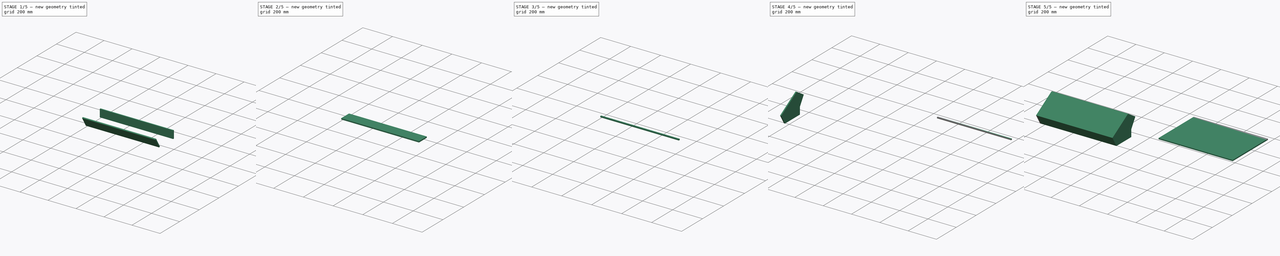
[diagram: build sequence overview — one tinted view per stage of 5, left to right]
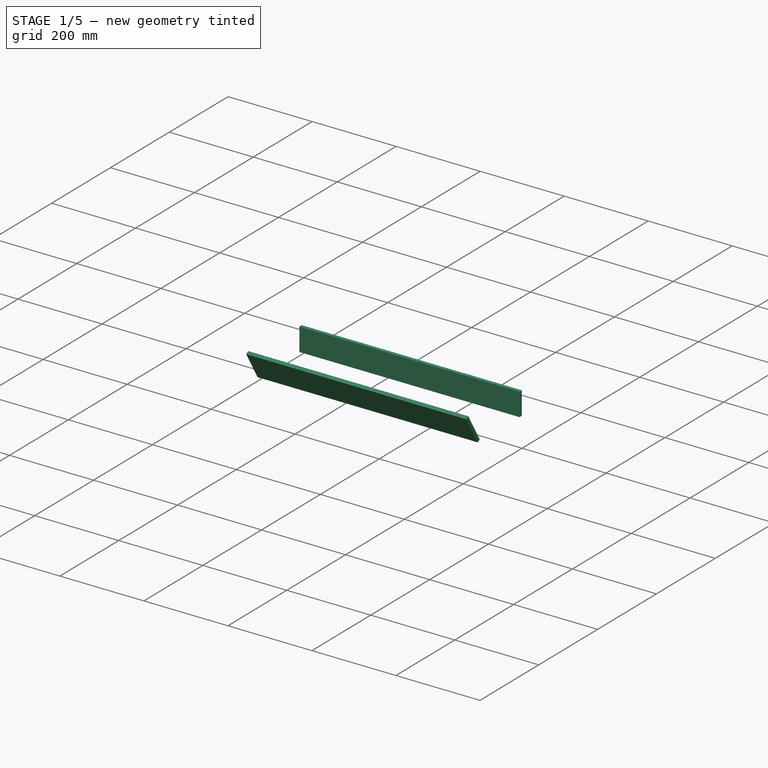
[diagram: stage 1 of 5 — iso view after this stage's code; geometry added in this stage tinted green]
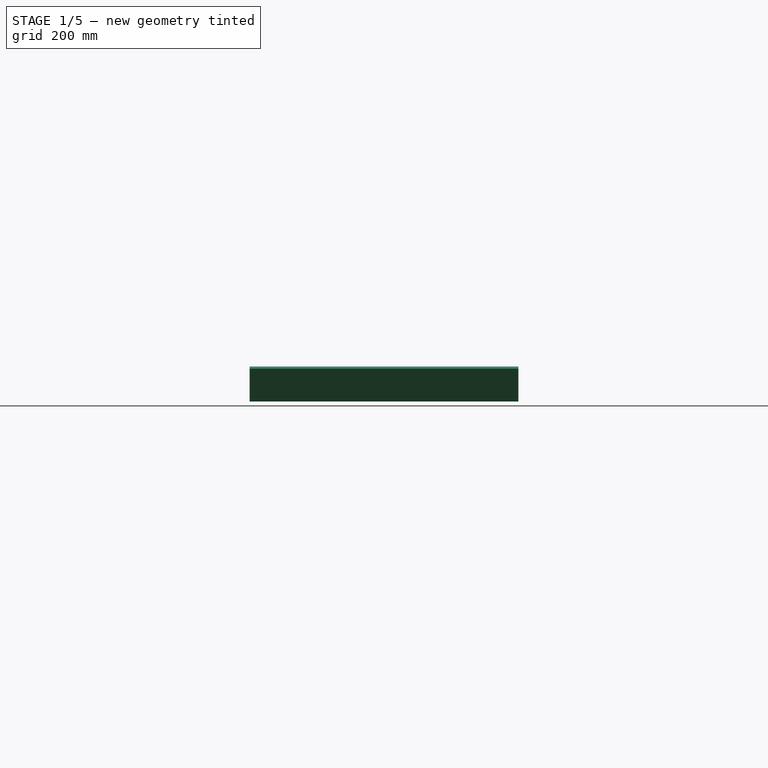
[diagram: stage 1 of 5 — front view after this stage's code; geometry added in this stage tinted green]
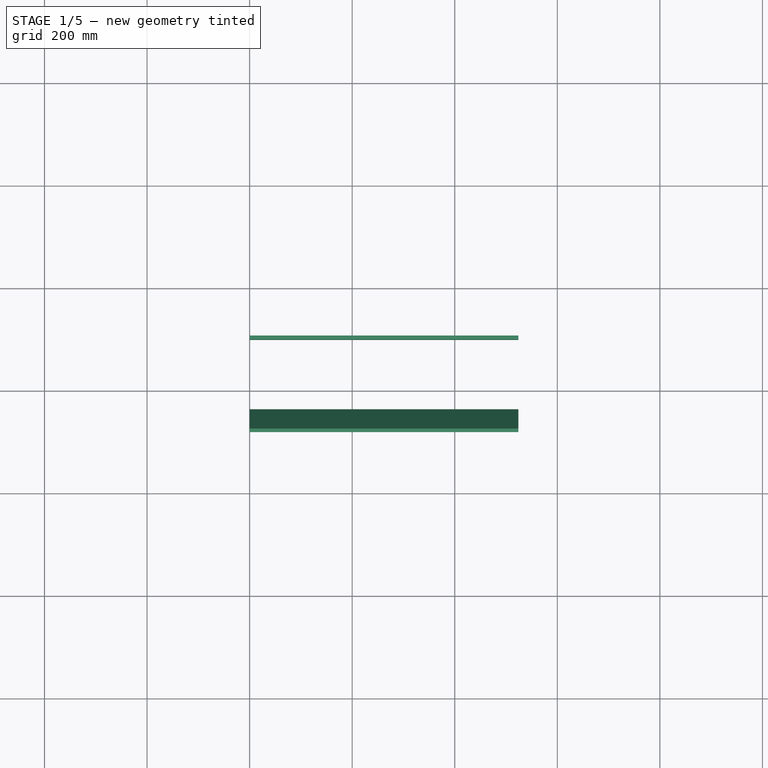
[diagram: stage 1 of 5 — top view after this stage's code; geometry added in this stage tinted green]
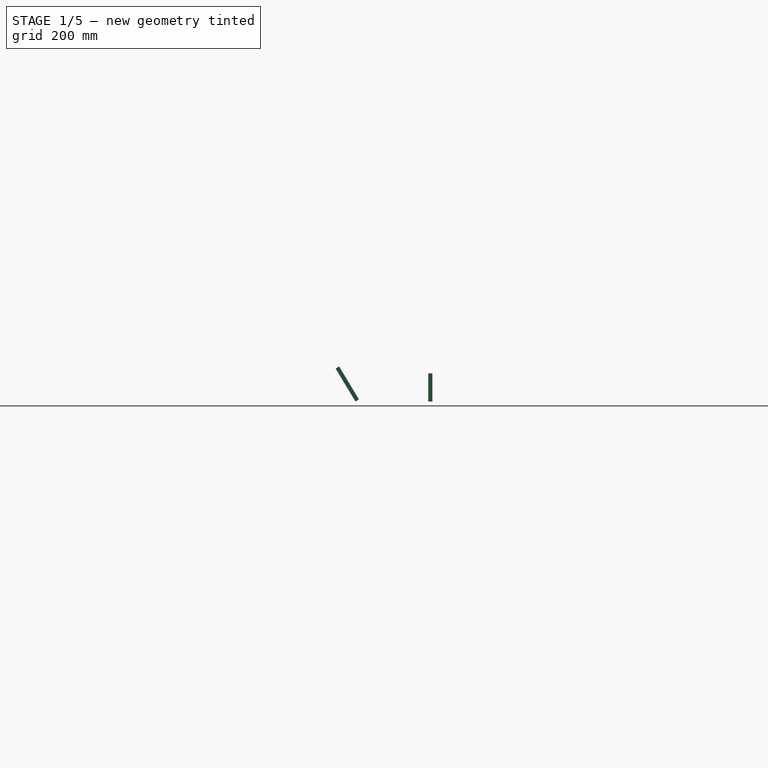
[diagram: stage 1 of 5 — right view after this stage's code; geometry added in this stage tinted green]
FCSTD DOCUMENT  (FreeCAD 0.18R16110 (Git))
Label: kerbal_controller
License: All rights reserved
LicenseURL: http://en.wikipedia.org/wiki/All_rights_reserved
objects: Sketcher::SketchObject×9, Part::Extrusion×9, Part::Box×6, Drawing::FeatureViewPart×4, Part::Compound×2, App::DocumentObjectGroup×2, Spreadsheet::Sheet×1, PartDesign::FeatureBase×1, PartDesign::Body×1, Drawing::FeaturePage×1
note: 28 computed .brp shape members not serialized (recipe doc carries the construction recipe); baked Part::Feature solids carry a one-line shape summary decoded from their .brp

FEATURE [Sketcher::SketchObject] Sketch  label="SideSketch"
  Placement = pos=(0,0,0) rot=(1,0,0;1.5708rad)
  expr: Constraints[10] = dimensions.control_panel_height + dimensions.plexi_witdh / 1.5
  expr: Constraints[11] = dimensions.instrument_panel_height
  sketch-geometry (6):
    g0: LineSegment StartX=-107.769 StartY=-98.6675 StartZ=0 EndX=42.1652 EndY=-98.6675 EndZ=0
    g1: LineSegment StartX=42.1652 StartY=-98.6675 StartZ=0 EndX=80.8526 EndY=-34.4158 EndZ=0
    g2: LineSegment StartX=80.8526 StartY=-34.4158 StartZ=0 EndX=-75.0649 EndY=59.4657 EndZ=0
    g3: LineSegment StartX=-75.0649 StartY=59.4657 StartZ=0 EndX=-147.149 EndY=14.4223 EndZ=0
    g4: LineSegment StartX=-147.149 StartY=14.4223 StartZ=0 EndX=-107.769 EndY=-48.5979 EndZ=0
    g5: LineSegment StartX=-107.769 StartY=-48.5979 StartZ=0 EndX=-107.769 EndY=-98.6675 EndZ=0
  constraints (13):
    c: Coincident(g0,g1)
    c: Coincident(g1,g2)
    c: Coincident(g2,g3)
    c: Coincident(g3,g4)
    c: Coincident(g4,g5)
    c: Coincident(g5,g0)
    c: Horizontal(g0)
    c: Perpendicular(g0,g5)
    c: Perpendicular(g3,g4)
    c: Perpendicular(g1,g2)
    c: Distance(g2) = 182
    c: Distance(g3) = 85
    c: Distance(g1) = 75
FEATURE [Spreadsheet::Sheet] Spreadsheet  label="dimensions"
  cells = A1=total_width; B1(total_witdh)==540mm; A2=instrument_panel_height; B2(instrument_panel_height)==85mm; A3=control_panel_height; B3(control_panel_height)==180mm; A4=mdf_width; B4(mdf_width)==8mm; A5=plexi_witdh; B5(plexi_witdh)==3mm
FEATURE [Part::Extrusion] Extrude  label="LeftPanel"
  Base = -> Sketch
  Dir = (0,-1,2e-16)
  DirMode = 2
  FaceMakerClass = Part::FaceMakerBullseye
  LengthFwd = 8
  LengthRev = 0
  Placement = pos=(0,0,0) rot=(0,0,-1;1.5708rad)
  Solid = true
  Symmetric = false
  expr: LengthFwd = dimensions.mdf_width
FEATURE [Sketcher::SketchObject] Sketch002  label="TopPanelSketch"
  ExternalGeometry = -> [Extrude]
  MapMode = 5
  Placement = pos=(-1.3e-15,100.146,97.5536) rot=(0,0.388733,0.92135;3.14159rad)
  Support = -> [Extrude]
  expr: Constraints[9] = dimensions.total_witdh - 2 * dimensions.mdf_width
  expr: Constraints[8] = dimensions.total_witdh - 2 * dimensions.mdf_width
  sketch-geometry (4):
    g0: LineSegment StartX=-524 StartY=-147.371 StartZ=0 EndX=0 EndY=-147.371 EndZ=0
    g1: LineSegment StartX=0 StartY=-147.371 StartZ=0 EndX=1.33e-14 EndY=-84.367 EndZ=0
    g2: LineSegment StartX=1.33e-14 StartY=-84.367 StartZ=0 EndX=-524 EndY=-84.367 EndZ=0
    g3: LineSegment StartX=-524 StartY=-84.367 StartZ=0 EndX=-524 EndY=-147.371 EndZ=0
  constraints (10):
    c: Coincident(g0,g1)
    c: Coincident(g1,g2)
    c: Coincident(g2,g3)
    c: Coincident(g3,g0)
    c: Coincident(g0,g-3)
    c: Coincident(g1,g-4)
    c: Perpendicular(g1,g0)
    c: Perpendicular(g1,g2)
    c: Distance(g0) = 524
    c: Distance(g2) = 524
FEATURE [Part::Extrusion] Extrude002  label="TopPanel"
  Base = -> Sketch002
  Dir = (0,0.716319,0.697773)
  DirMode = 2
  FaceMakerClass = Part::FaceMakerBullseye
  LengthFwd = -8
  LengthRev = 0
  Solid = true
  Symmetric = false
  expr: LengthFwd = -dimensions.mdf_width
FEATURE [Sketcher::SketchObject] Sketch004  label="FrontPanelSketch"
  ExternalGeometry = -> [Extrude]
  MapMode = 5
  Placement = pos=(1.74e-14,-86.2035,-8.87114) rot=(1,0,0;1.67335rad)
  Support = -> [Extrude]
  expr: Constraints[7] = dimensions.total_witdh - 2 * dimensions.mdf_width
  expr: Constraints[6] = dimensions.total_witdh - 2 * dimensions.mdf_width
  sketch-geometry (4):
    g0: LineSegment StartX=0 StartY=-32.1195 StartZ=0 EndX=-2.31e-14 EndY=-107.119 EndZ=0
    g1: LineSegment StartX=-2.31e-14 StartY=-107.119 StartZ=0 EndX=524 EndY=-107.119 EndZ=0
    g2: LineSegment StartX=524 StartY=-107.119 StartZ=0 EndX=524 EndY=-32.1195 EndZ=0
    g3: LineSegment StartX=524 StartY=-32.1195 StartZ=0 EndX=0 EndY=-32.1195 EndZ=0
  constraints (10):
    c: Coincident(g0,g1)
    c: Coincident(g1,g2)
    c: Coincident(g2,g3)
    c: Coincident(g3,g0)
    c: Perpendicular(g0,g3)
    c: Perpendicular(g0,g1)
    c: Distance(g3) = 524
    c: Distance(g1) = 524
    c: Coincident(g-4,g0)
    c: Coincident(g-3,g0)
FEATURE [Part::Extrusion] Extrude004  label="FrontPanel"
  Base = -> Sketch004
  Dir = (2e-16,-0.994747,-0.102369)
  DirMode = 2
  FaceMakerClass = Part::FaceMakerBullseye
  LengthFwd = -8
  LengthRev = 0
  Solid = true
  Symmetric = false
  expr: LengthFwd = -dimensions.mdf_width
FEATURE [Sketcher::SketchObject] Sketch007  label="BackPanelSketch"
  ExternalGeometry = -> [Extrude,Extrude002]
  MapMode = 5
  Placement = pos=(-4.51e-14,202.978,0) rot=(0,0.707107,0.707107;3.14159rad)
  Support = -> [Extrude]
  expr: Constraints[10] = dimensions.total_witdh - dimensions.mdf_width * 2
  sketch-geometry (4):
    g0: LineSegment StartX=0 StartY=-14.0935 StartZ=0 EndX=-524 EndY=-14.0935 EndZ=0
    g1: LineSegment StartX=-524 StartY=-14.0935 StartZ=0 EndX=-524 EndY=-115.428 EndZ=0
    g2: LineSegment StartX=-524 StartY=-115.428 StartZ=0 EndX=0 EndY=-115.428 EndZ=0
    g3: LineSegment StartX=0 StartY=-115.428 StartZ=0 EndX=0 EndY=-14.0935 EndZ=0
  constraints (11):
    c: Coincident(g0,g1)
    c: Coincident(g1,g2)
    c: Coincident(g2,g3)
    c: Coincident(g3,g0)
    c: Horizontal(g0)
    c: Horizontal(g2)
    c: Vertical(g1)
    c: Vertical(g3)
    c: Coincident(g2,g-3)
    c: Distance(g0,g-4) = 0.5
    c: Distance(g2) = 524
FEATURE [Part::Extrusion] Extrude007  label="BackPanel"
  Base = -> Sketch007
  Dir = (-2e-16,1,-2e-16)
  DirMode = 2
  FaceMakerClass = Part::FaceMakerBullseye
  LengthFwd = -8
  LengthRev = 0
  Solid = true
  Symmetric = false
  expr: LengthFwd = -dimensions.mdf_width
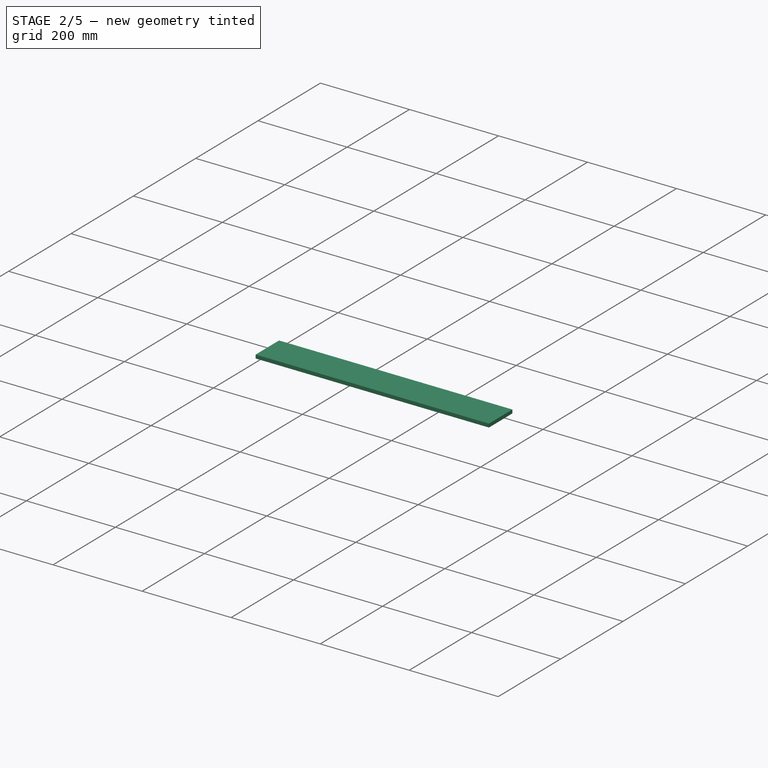
[diagram: stage 2 of 5 — iso view after this stage's code; geometry added in this stage tinted green]
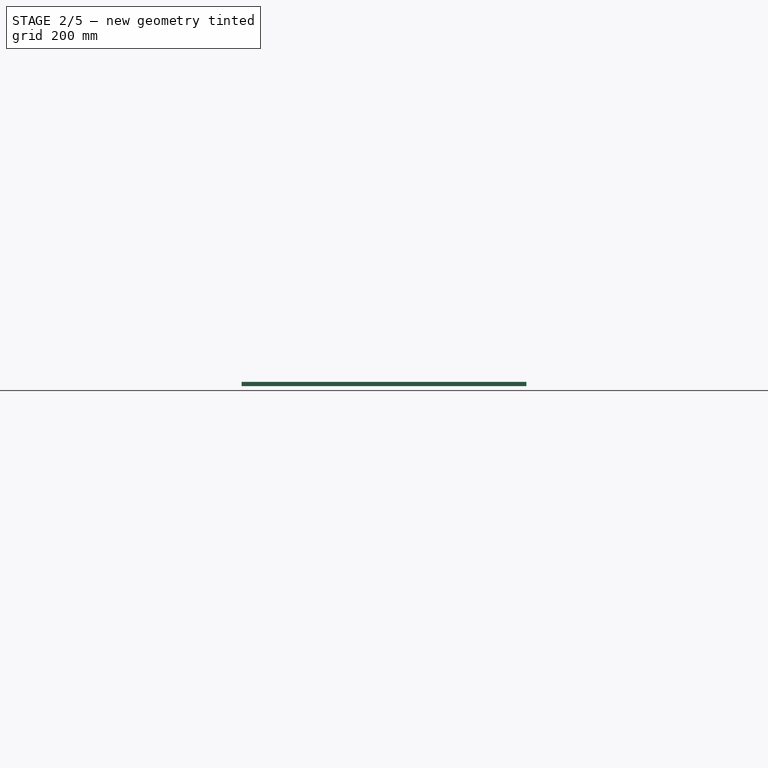
[diagram: stage 2 of 5 — front view after this stage's code; geometry added in this stage tinted green]
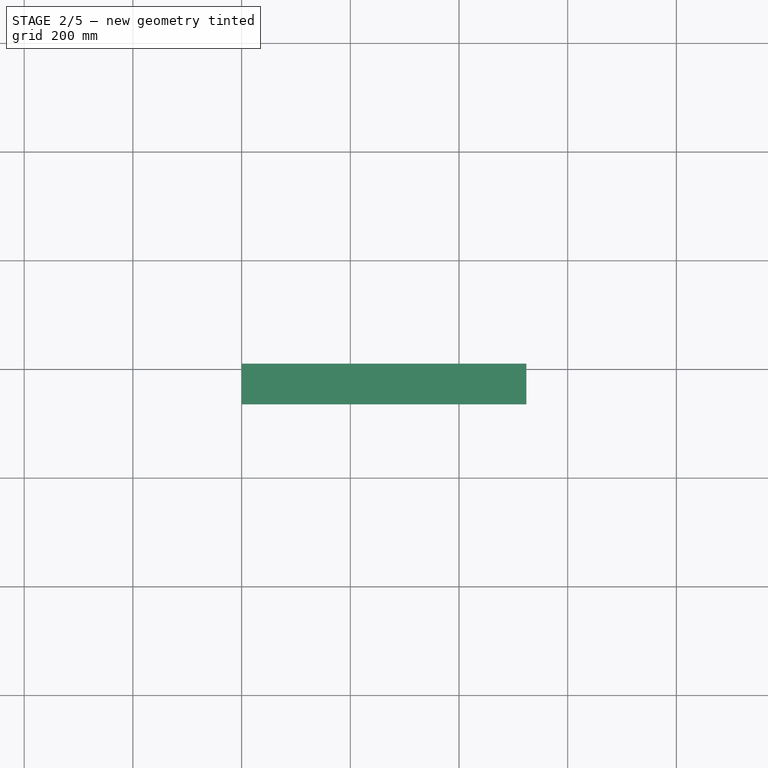
[diagram: stage 2 of 5 — top view after this stage's code; geometry added in this stage tinted green]
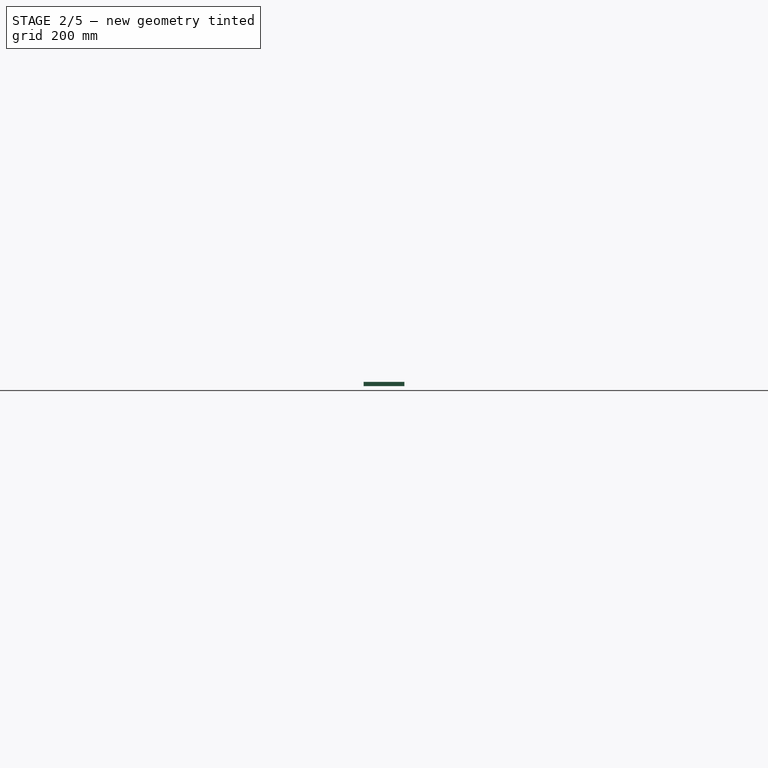
[diagram: stage 2 of 5 — right view after this stage's code; geometry added in this stage tinted green]
FEATURE [Sketcher::SketchObject] Sketch008  label="BottomPanelSketch"
  ExternalGeometry = -> [Extrude007,Extrude004]
  MapMode = 5
  Placement = pos=(-2.54e-14,0,-115.428) rot=(0.707107,-0.707107,0;3.14159rad)
  Support = -> [Extrude]
  expr: Constraints[9] = dimensions.total_witdh - dimensions.mdf_width * 2
  sketch-geometry (4):
    g0: LineSegment StartX=-194.978 StartY=0 StartZ=0 EndX=66.7799 EndY=0 EndZ=0
    g1: LineSegment StartX=66.7799 StartY=0 StartZ=0 EndX=66.7799 EndY=-524 EndZ=0
    g2: LineSegment StartX=66.7799 StartY=-524 StartZ=0 EndX=-194.978 EndY=-524 EndZ=0
    g3: LineSegment StartX=-194.978 StartY=-524 StartZ=0 EndX=-194.978 EndY=0 EndZ=0
  constraints (11):
    c: Coincident(g0,g1)
    c: Coincident(g1,g2)
    c: Coincident(g2,g3)
    c: Coincident(g3,g0)
    c: Horizontal(g0)
    c: Horizontal(g2)
    c: Vertical(g1)
    c: Vertical(g3)
    c: Coincident(g-3,g0)
    c: Distance(g3) = 524
    c: Distance(g0,g-4) = 0.5
FEATURE [Part::Extrusion] Extrude008  label="BottomPanel"
  Base = -> Sketch008
  Dir = (-2e-16,0,-1)
  DirMode = 2
  FaceMakerClass = Part::FaceMakerBullseye
  LengthFwd = -8
  LengthRev = 0
  Solid = true
  Symmetric = false
  expr: LengthFwd = -dimensions.mdf_width
FEATURE [Part::Box] Box  label="BottomPanelDeployed"
  AttacherType = Attacher::AttachEngine3D
  Height = 8
  Length = 524
  Placement = pos=(800,0,0) rot=(0,0,1;0rad)
  Width = 261.758
  expr: Length = BottomPanel.Shape.Edge6.Length
  expr: Width = BottomPanel.Shape.Edge9.Length
  expr: Height = dimensions.mdf_width
FEATURE [Part::Box] Box001  label="FrontPanelDeployed"
  AttacherType = Attacher::AttachEngine3D
  Height = 8
  Length = 524
  Placement = pos=(800,261.758,0) rot=(0,0,1;0rad)
  Width = 75
  expr: Length = FrontPanel.Shape.Edge6.Length
  expr: Width = FrontPanel.Shape.Edge9.Length
  expr: Height = dimensions.mdf_width
  expr: Placement.Base.z = BottomPanelDeployed.Shape.Vertex4.Point.z
  expr: Placement.Base.y = BottomPanelDeployed.Shape.Vertex4.Point.y
  expr: Placement.Base.x = BottomPanelDeployed.Shape.Vertex4.Point.x
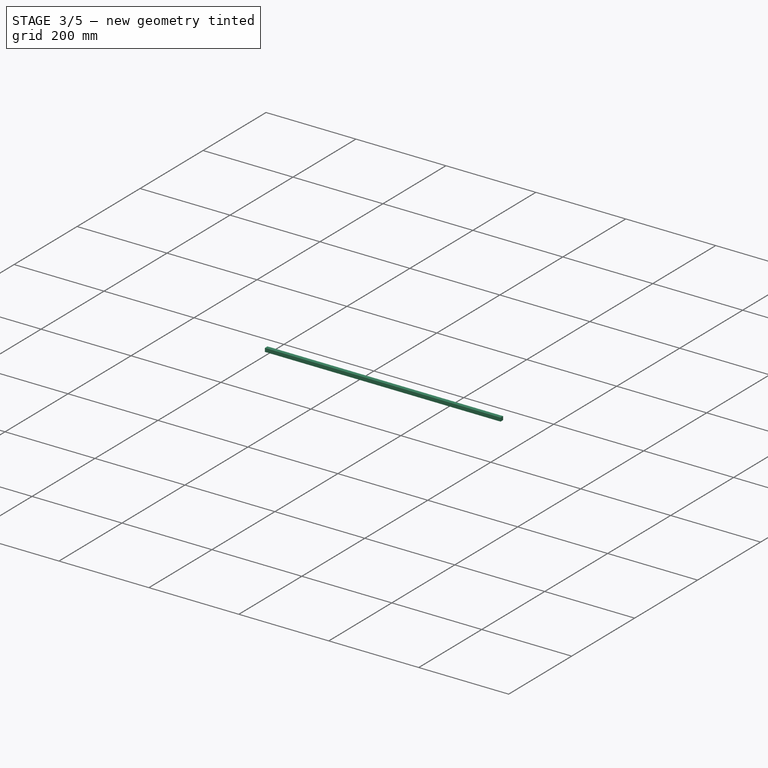
[diagram: stage 3 of 5 — iso view after this stage's code; geometry added in this stage tinted green]
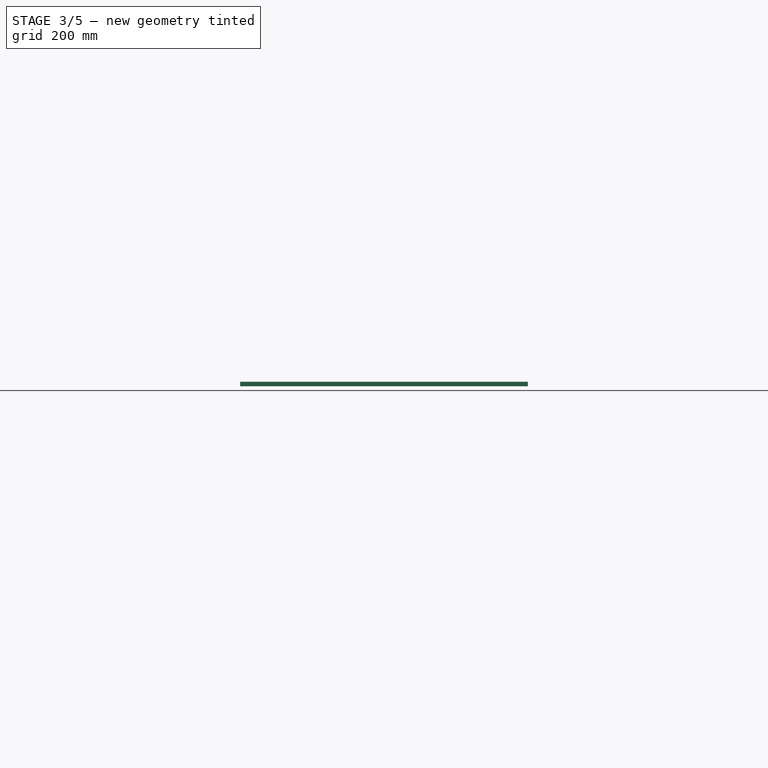
[diagram: stage 3 of 5 — front view after this stage's code; geometry added in this stage tinted green]
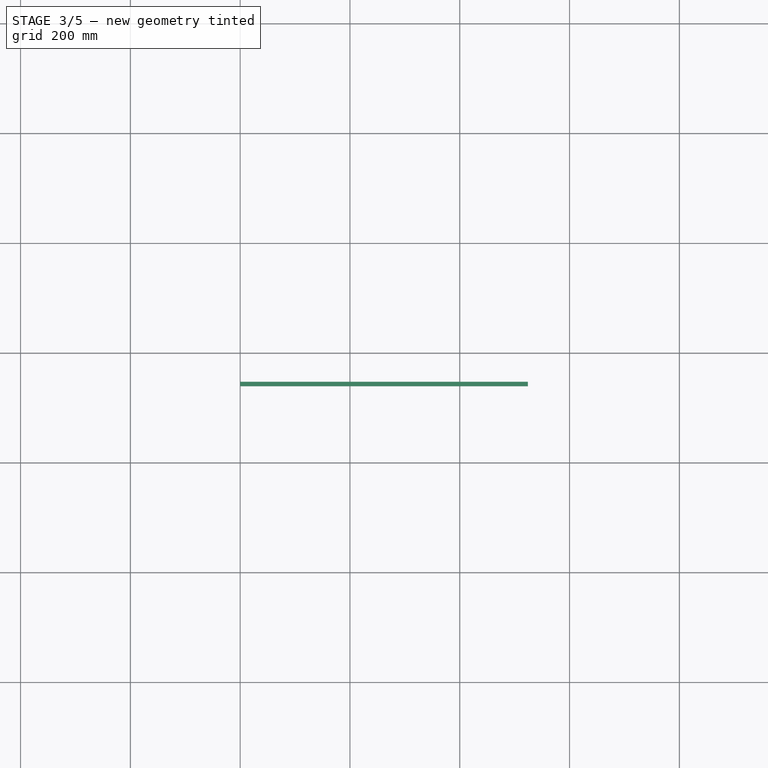
[diagram: stage 3 of 5 — top view after this stage's code; geometry added in this stage tinted green]
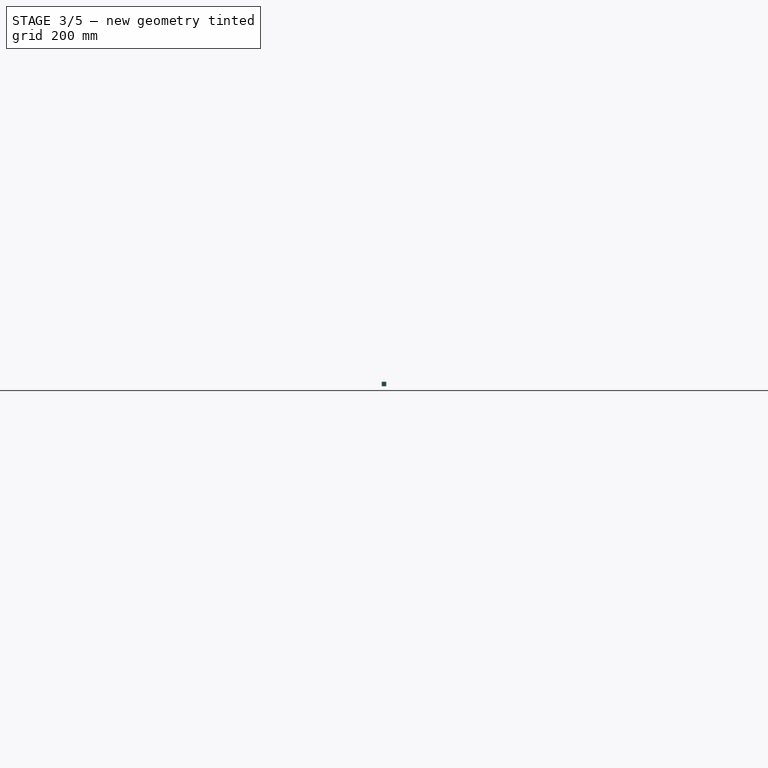
[diagram: stage 3 of 5 — right view after this stage's code; geometry added in this stage tinted green]
FEATURE [PartDesign::Body] Body  label="RightPanel"
  BaseFeature = -> Extrude
  Group = -> [Clone]
  Origin = -> Origin
  Placement = pos=(532,0,0) rot=(0,0,1;0rad)
  Tip = -> Clone
  expr: Placement.Base.x = dimensions.total_witdh - dimensions.mdf_width
FEATURE [Sketcher::SketchObject] Sketch005  label="SupportBarControlSketch"
  ExternalGeometry = -> [Extrude]
  MapMode = 5
  Placement = pos=(-7.8e-15,3.28803,-31.9507) rot=(0.051184,0.051184,-0.997377;1.57342rad)
  Support = -> [Extrude]
  expr: Constraints[10] = dimensions.total_witdh - dimensions.mdf_width * 2
  sketch-geometry (4):
    g0: LineSegment StartX=-95.3412 StartY=0 StartZ=0 EndX=-87.3412 EndY=0 EndZ=0
    g1: LineSegment StartX=-87.3412 StartY=0 StartZ=0 EndX=-87.3412 EndY=524 EndZ=0
    g2: LineSegment StartX=-87.3412 StartY=524 StartZ=0 EndX=-95.3412 EndY=524 EndZ=0
    g3: LineSegment StartX=-95.3412 StartY=524 StartZ=0 EndX=-95.3412 EndY=0 EndZ=0
  constraints (11):
    c: Coincident(g0,g1)
    c: Coincident(g1,g2)
    c: Coincident(g2,g3)
    c: Coincident(g3,g0)
    c: Horizontal(g0)
    c: Horizontal(g2)
    c: Vertical(g1)
    c: Vertical(g3)
    c: Coincident(g0,g-3)
    c: Distance(g0) = 8
    c: Distance(g3) = 524
FEATURE [Sketcher::SketchObject] Sketch006  label="SupportBarInstrumentSketch"
  ExternalGeometry = -> [Sketch005]
  MapMode = 5
  Placement = pos=(-2.66e-14,58.869,-60.4337) rot=(0.35245,0.35245,-0.866925;1.71312rad)
  Support = -> [Extrude]
  expr: Constraints[10] = dimensions.total_witdh - dimensions.mdf_width * 2
  sketch-geometry (4):
    g0: LineSegment StartX=-62.8071 StartY=0 StartZ=0 EndX=-54.8071 EndY=0 EndZ=0
    g1: LineSegment StartX=-54.8071 StartY=0 StartZ=0 EndX=-54.8071 EndY=524 EndZ=0
    g2: LineSegment StartX=-54.8071 StartY=524 StartZ=0 EndX=-62.8071 EndY=524 EndZ=0
    g3: LineSegment StartX=-62.8071 StartY=524 StartZ=0 EndX=-62.8071 EndY=0 EndZ=0
  constraints (11):
    c: Coincident(g0,g1)
    c: Coincident(g1,g2)
    c: Coincident(g2,g3)
    c: Coincident(g3,g0)
    c: Horizontal(g0)
    c: Horizontal(g2)
    c: Vertical(g1)
    c: Vertical(g3)
    c: Coincident(g-3,g0)
    c: Distance(g0) = 8
    c: Distance(g3) = 524
FEATURE [Part::Extrusion] Extrude005  label="SupportBarControl"
  Base = -> Sketch005
  Dir = (2e-16,-0.102369,0.994747)
  DirMode = 2
  FaceMakerClass = Part::FaceMakerBullseye
  LengthFwd = -8
  LengthRev = 0
  Solid = true
  Symmetric = false
  expr: LengthFwd = -dimensions.mdf_width
FEATURE [Part::Box] Box002  label="BackPanelDeployed"
  AttacherType = Attacher::AttachEngine3D
  Height = 8
  Length = 524
  Placement = pos=(800,336.758,0) rot=(0,0,1;0rad)
  Width = 101.334
  expr: Width = BackPanel.Shape.Edge6.Length
  expr: Placement.Base.y = FrontPanelDeployed.Shape.Vertex4.Point.y
  expr: Placement.Base.x = FrontPanelDeployed.Shape.Vertex4.Point.x
  expr: Length = BackPanel.Shape.Edge9.Length
  expr: Placement.Base.z = FrontPanelDeployed.Shape.Vertex4.Point.z
  expr: Height = dimensions.mdf_width
FEATURE [Part::Box] Box003  label="TopPanelDeployed"
  AttacherType = Attacher::AttachEngine3D
  Height = 8
  Length = 524
  Placement = pos=(800,438.092,0) rot=(0,0,1;0rad)
  Width = 63.0045
  expr: Placement.Base.y = BackPanelDeployed.Shape.Vertex4.Point.y
  expr: Placement.Base.x = BackPanelDeployed.Shape.Vertex4.Point.x
  expr: Length = TopPanel.Shape.Edge9.Length
  expr: Width = TopPanel.Shape.Edge6.Length
  expr: Placement.Base.z = BackPanelDeployed.Shape.Vertex4.Point.z
  expr: Height = dimensions.mdf_width
FEATURE [App::DocumentObjectGroup] Group001  label="AssembledFaces"
  Group = -> [Extrude005,Extrude006,Extrude,Extrude001,Extrude002,Extrude003,Extrude004,Body,Extrude007,Extrude008,Compound001]
FEATURE [Drawing::FeatureViewPart] View  label="ViewFinal"
  Direction = (1,-1,1)
  HiddenWidth = 0.15
  LineWidth = 0.35
  Rotation = 60
  Scale = 0.5
  ShowHiddenLines = false
  ShowSmoothLines = false
  Source = -> Compound001
  Tolerance = 0.05
  ViewResult = <blob: 2346 chars omitted>
  Visible = true
  X = 100
  Y = 80
FEATURE [Drawing::FeatureViewPart] Ortho001  label="OrthoLeftPanel"
  Direction = (1,0,0)
  HiddenWidth = 0.15
  LineWidth = 0.35
  Rotation = 0
  ShowHiddenLines = false
  ShowSmoothLines = false
  Source = -> Extrude
  Tolerance = 0.05
  ViewResult = <g id="OrthoLeftPanel"\n   transform="rotate(0,1000,350) translate(1000,350) scale(1,1)"\n  >\n<g   fill="none"\n   stroke="rgb(0, 0, 0)"\n   stroke-linecap="butt"\n   stroke-linejoin="miter"\n   stroke-width="0.350000"\n   transform="scale(1,-1)"\n  >\n<path id= "1" d=" M -115.428 -202.978 L -115.428 75.2378 " />\n<path id= "2" d=" M -115.428 75.2378 L -40.8219 82.9155 " />\n<path id= "3" d=" M -40.8219 82.9155 L -22.1908 -98.1284 " />\n<path id= "4" d=" M -22.1908 -98.1284 L 37.1199 -159.016 " />\n<path id= "5" d=" M 37.1199 -159.016 L -8.01136 -202.978 " />\n<path id= "6" d=" M -8.01136 -202.978 L -115.428 -202.978 " />\n</g>\n</g>
  Visible = true
  X = 1000
  Y = 350
FEATURE [Drawing::FeatureViewPart] Ortho002  label="OrthoRightPanel"
  Direction = (-1,0,0)
  HiddenWidth = 0.15
  LineWidth = 0.35
  Rotation = 0
  ShowHiddenLines = false
  ShowSmoothLines = false
  Source = -> Body
  Tolerance = 0.05
  ViewResult = <g id="OrthoRightPanel"\n   transform="rotate(0,750,350) translate(750,350) scale(1,1)"\n  >\n<g   fill="none"\n   stroke="rgb(0, 0, 0)"\n   stroke-linecap="butt"\n   stroke-linejoin="miter"\n   stroke-width="0.350000"\n   transform="scale(1,-1)"\n  >\n<path id= "1" d=" M 115.428 -202.978 L 115.428 75.2378 " />\n<path id= "2" d=" M 115.428 75.2378 L 40.8219 82.9155 " />\n<path id= "3" d=" M 40.8219 82.9155 L 22.1908 -98.1284 " />\n<path id= "4" d=" M 22.1908 -98.1284 L -37.1199 -159.016 " />\n<path id= "5" d=" M -37.1199 -159.016 L 8.01136 -202.978 " />\n<path id= "6" d=" M 8.01136 -202.978 L 115.428 -202.978 " />\n</g>\n</g>
  Visible = true
  X = 750
  Y = 350
FEATURE [Part::Box] Box004  label="SupportBarControlDeployed"
  AttacherType = Attacher::AttachEngine3D
  Height = 8
  Length = 524
  Placement = pos=(800,501.097,0) rot=(0,0,1;0rad)
  Width = 8
  expr: Placement.Base.y = TopPanelDeployed.Shape.Vertex4.Point.y
  expr: Placement.Base.x = TopPanelDeployed.Shape.Vertex4.Point.x
  expr: Width = SupportBarControl.Shape.Edge9.Length
  expr: Length = SupportBarControl.Shape.Edge6.Length
  expr: Placement.Base.z = TopPanelDeployed.Shape.Vertex4.Point.z
  expr: Height = dimensions.mdf_width
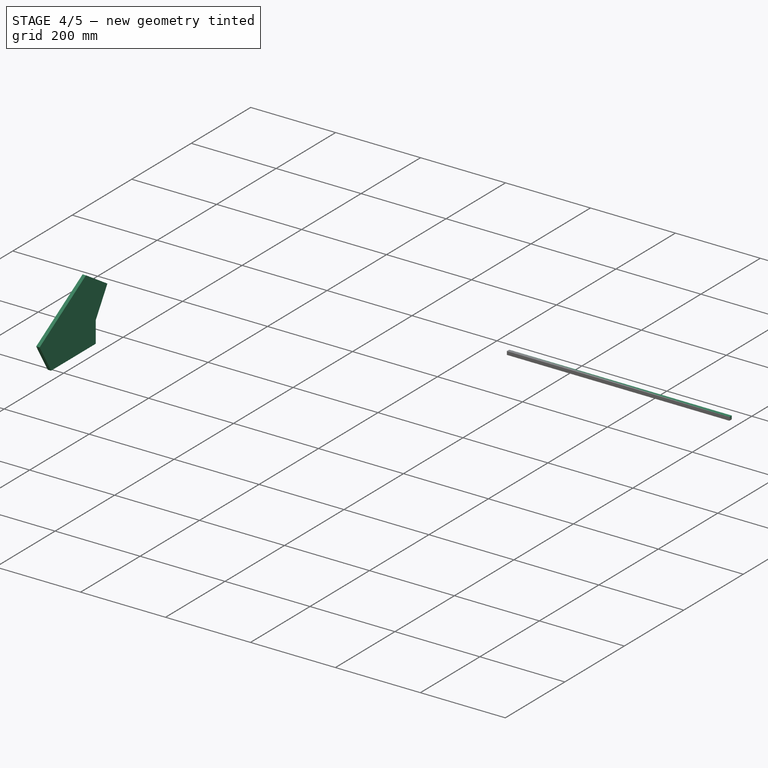
[diagram: stage 4 of 5 — iso view after this stage's code; geometry added in this stage tinted green]
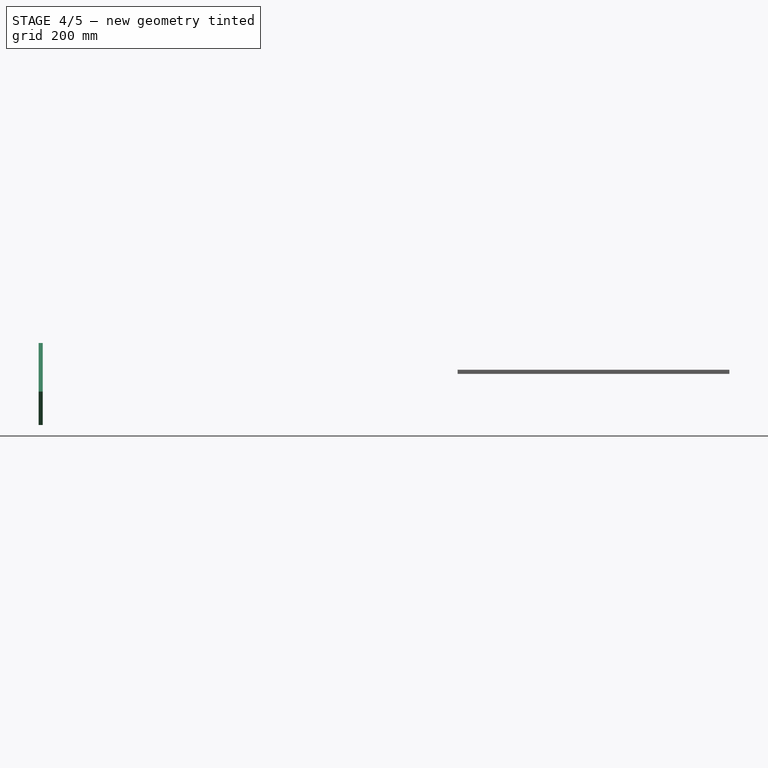
[diagram: stage 4 of 5 — front view after this stage's code; geometry added in this stage tinted green]
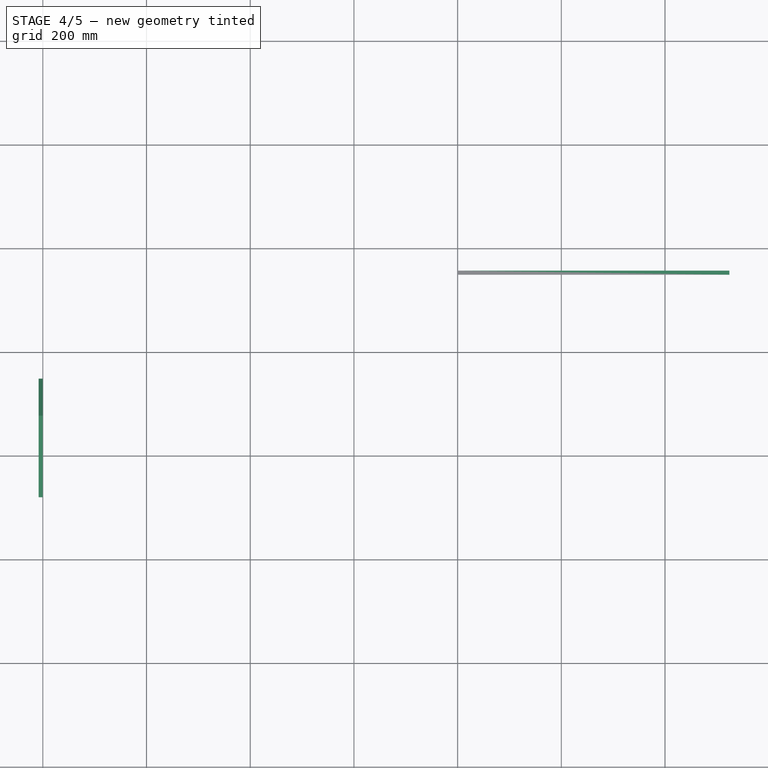
[diagram: stage 4 of 5 — top view after this stage's code; geometry added in this stage tinted green]
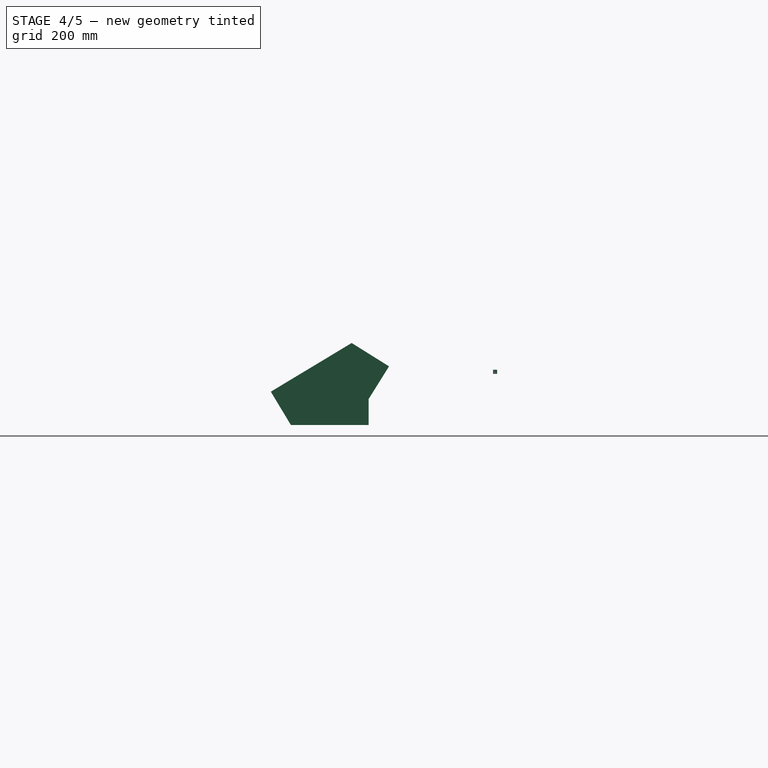
[diagram: stage 4 of 5 — right view after this stage's code; geometry added in this stage tinted green]
FEATURE [PartDesign::FeatureBase] Clone
  BaseFeature = -> Extrude
  Placement = pos=(0,0,0) rot=(0,0,-1;1.5708rad)
FEATURE [Part::Extrusion] Extrude006  label="SupportBarInstrument"
  Base = -> Sketch006
  Dir = (3e-16,-0.697773,0.716319)
  DirMode = 2
  FaceMakerClass = Part::FaceMakerBullseye
  LengthFwd = -8
  LengthRev = 0
  Solid = true
  Symmetric = false
  expr: LengthFwd = -dimensions.mdf_width
FEATURE [Part::Box] Box005  label="SupportBarInstrumentDeployed"
  AttacherType = Attacher::AttachEngine3D
  Height = 8
  Length = 524
  Placement = pos=(800,509.097,0) rot=(0,0,1;0rad)
  Width = 8
  expr: Width = SupportBarInstrument.Shape.Edge9.Length
  expr: Length = SupportBarInstrument.Shape.Edge6.Length
  expr: Height = dimensions.mdf_width
  expr: Placement.Base.z = SupportBarControlDeployed.Shape.Vertex4.Point.z
  expr: Placement.Base.y = SupportBarControlDeployed.Shape.Vertex4.Point.y
  expr: Placement.Base.x = SupportBarControlDeployed.Shape.Vertex4.Point.x
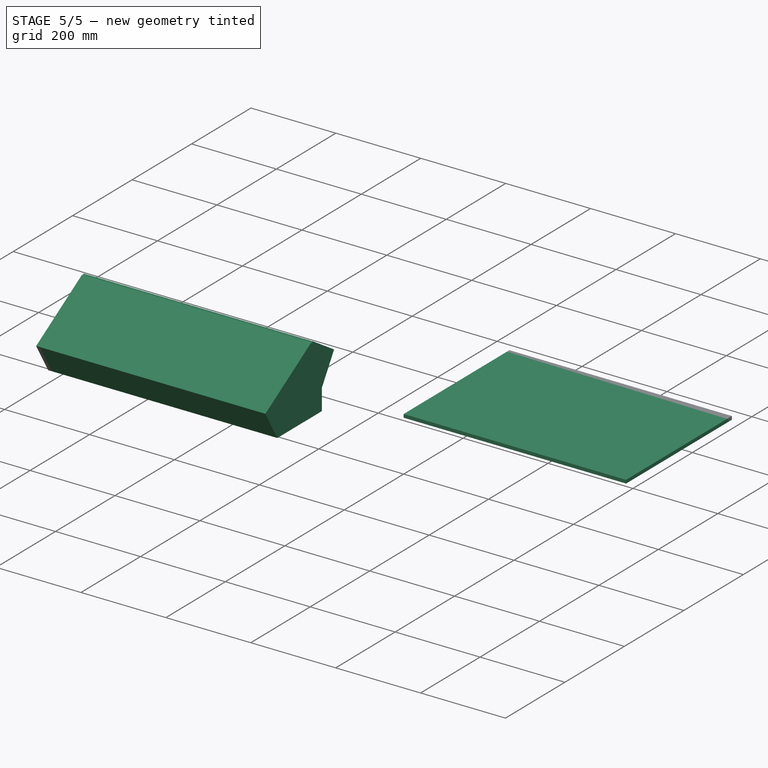
[diagram: stage 5 of 5 — iso view after this stage's code; geometry added in this stage tinted green]
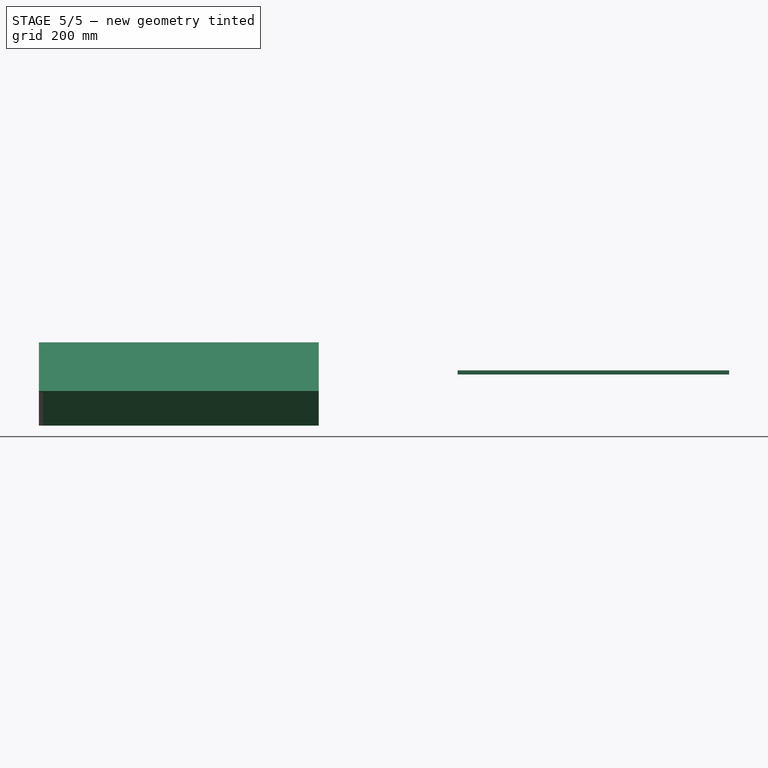
[diagram: stage 5 of 5 — front view after this stage's code; geometry added in this stage tinted green]
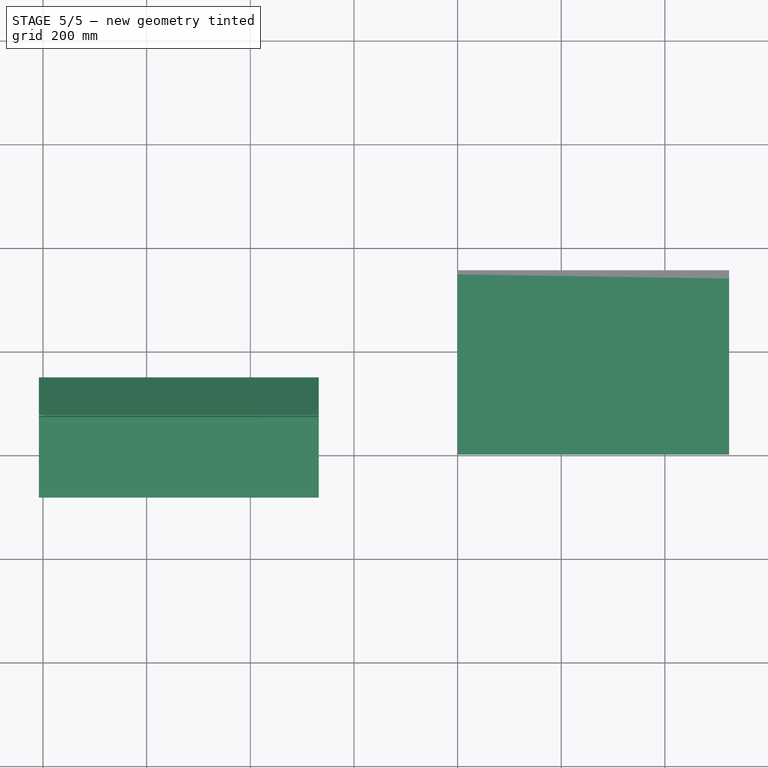
[diagram: stage 5 of 5 — top view after this stage's code; geometry added in this stage tinted green]
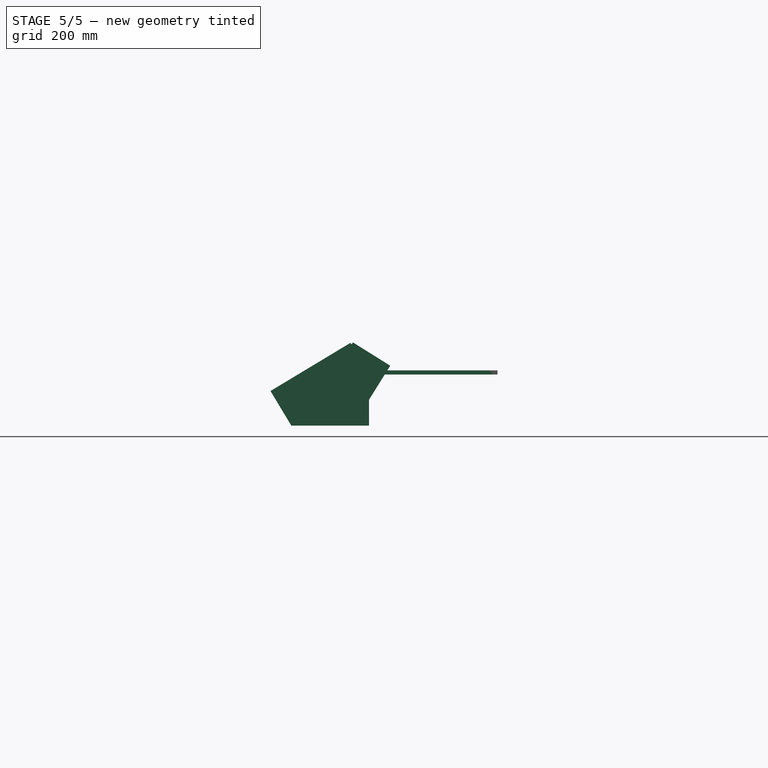
[diagram: stage 5 of 5 — right view after this stage's code; geometry added in this stage tinted green]
FEATURE [Sketcher::SketchObject] Sketch001  label="InstrumentSketch"
  ExternalGeometry = -> [Extrude]
  MapMode = 5
  Placement = pos=(-2.66e-14,58.869,-60.4337) rot=(0.35245,0.35245,-0.866925;1.71312rad)
  Support = -> [Extrude]
  expr: Constraints[9] = dimensions.total_witdh
  expr: Constraints[8] = dimensions.total_witdh
  sketch-geometry (4):
    g0: LineSegment StartX=-139.807 StartY=-8 StartZ=0 EndX=-54.8071 EndY=-8 EndZ=0
    g1: LineSegment StartX=-54.8071 StartY=-8 StartZ=0 EndX=-54.8071 EndY=532 EndZ=0
    g2: LineSegment StartX=-54.8071 StartY=532 StartZ=0 EndX=-139.807 EndY=532 EndZ=0
    g3: LineSegment StartX=-139.807 StartY=532 StartZ=0 EndX=-139.807 EndY=-8 EndZ=0
  constraints (10):
    c: Coincident(g0,g1)
    c: Coincident(g1,g2)
    c: Coincident(g2,g3)
    c: Coincident(g3,g0)
    c: Perpendicular(g0,g3)
    c: Perpendicular(g1,g0)
    c: Coincident(g-3,g0)
    c: Coincident(g0,g-4)
    c: Distance(g3) = 540
    c: Distance(g1) = 540
FEATURE [Part::Extrusion] Extrude001  label="InstrumentPanel"
  Base = -> Sketch001
  Dir = (3e-16,-0.697773,0.716319)
  DirMode = 2
  FaceMakerClass = Part::FaceMakerBullseye
  LengthFwd = 3
  LengthRev = 0
  Solid = true
  Symmetric = false
  expr: LengthFwd = dimensions.plexi_witdh
FEATURE [Sketcher::SketchObject] Sketch003  label="ControlSketch"
  ExternalGeometry = -> [Extrude]
  MapMode = 5
  Placement = pos=(-7.8e-15,3.28803,-31.9507) rot=(0.051184,0.051184,-0.997377;1.57342rad)
  Support = -> [Extrude]
  expr: Constraints[10] = dimensions.control_panel_height
  expr: Constraints[9] = dimensions.total_witdh
  expr: Constraints[8] = dimensions.total_witdh
  sketch-geometry (4):
    g0: LineSegment StartX=-93.3412 StartY=532 StartZ=0 EndX=-93.3412 EndY=-8 EndZ=0
    g1: LineSegment StartX=-93.3412 StartY=-8 StartZ=0 EndX=86.6588 EndY=-8 EndZ=0
    g2: LineSegment StartX=86.6588 StartY=-8 StartZ=0 EndX=86.6588 EndY=532 EndZ=0
    g3: LineSegment StartX=86.6588 StartY=532 StartZ=0 EndX=-93.3412 EndY=532 EndZ=0
  constraints (11):
    c: Coincident(g0,g1)
    c: Coincident(g1,g2)
    c: Coincident(g2,g3)
    c: Coincident(g3,g0)
    c: Coincident(g1,g-3)
    c: Parallel(g1,g-4)
    c: Perpendicular(g1,g0)
    c: Perpendicular(g1,g2)
    c: Distance(g0) = 540
    c: Distance(g2) = 540
    c: Distance(g1) = 180
FEATURE [Part::Extrusion] Extrude003  label="ControlPanel"
  Base = -> Sketch003
  Dir = (2e-16,-0.102369,0.994747)
  DirMode = 2
  FaceMakerClass = Part::FaceMakerBullseye
  LengthFwd = 3
  LengthRev = 0
  Solid = true
  Symmetric = false
  expr: LengthFwd = dimensions.plexi_witdh
FEATURE [Part::Compound] Compound001  label="ControlBox"
  Links = -> [Extrude005,Extrude,Extrude004,Extrude006,Extrude003,Extrude001,Extrude002,Extrude007,Extrude008,Body]
FEATURE [Part::Compound] Compound  label="FlatPack"
  Links = -> [Box,Box001,Box002,Box003,Box004,Box005]
FEATURE [App::DocumentObjectGroup] Group  label="DeployedFaces"
  Group = -> [Box,Box001,Box002,Box003,Compound,Box004,Box005]
FEATURE [Drawing::FeatureViewPart] Ortho  label="OrthoDeployed"
  Direction = (0,0,1)
  HiddenWidth = 0.15
  LineWidth = 0.35
  Rotation = 90
  ShowHiddenLines = false
  ShowSmoothLines = false
  Source = -> Compound
  Tolerance = 0.05
  ViewResult = <g id="OrthoDeployed"\n   transform="rotate(90,100,-530) translate(100,-530) scale(1,1)"\n  >\n<g   fill="none"\n   stroke="rgb(0, 0, 0)"\n   stroke-linecap="butt"\n   stroke-linejoin="miter"\n   stroke-width="0.350000"\n   transform="scale(1,-1)"\n  >\n<path id= "1" d=" M 800 0 L 800 261.758 " />\n<path id= "2" d=" M 1324 0 L 1324 261.758 " />\n<path id= "3" d=" M 800 0 L 1324 0 " />\n<path id= "4" d=" M 800 261.758 L 1324 261.758 " />\n<path id= "5" d=" M 800 261.758 L 800 336.758 " />\n<path id= "6" d=" M 1324 261.758 L 1324 336.758 " />\n<path id= "7" d=" M 800 261.758 L 1324 261.758 " />\n<path id= "8" d=" M 800 336.758 L 1324 336.758 " />\n<path id= "9" d=" M 800 336.758 L 800 438.092 " />\n<path id= "10" d=" M 1324 336.758 L 1324 438.092 " />\n<path id= "11" d=" M 800 336.758 L 1324 336.758 " />\n<path id= "12" d=" M 800 438.092 L 1324 438.092 " />\n<path id= "13" d=" M 800 438.092 L 800 501.097 " />\n<path id= "14" d=" M 1324 438.092 L 1324 501.097 " />\n<path id= "15" d=" M 800 438.092 L 1324 438.092 " />\n<path id= "16" d=" M 800 501.097 L 1324 501.097 " />\n<path id= "17" d=" M 800 501.097 L 800 509.097 " />\n<path id= "18" d=" M 1324 501.097 L 1324 509.097 " />\n<path id= "19" d=" M 800 501.097 L 1324 501.097 " />\n<path id= "20" d=" M 800 509.097 L 1324 509.097 " />\n<path id= "21" d=" M 800 509.097 L 800 517.097 " />\n<path id= "22" d=" M 1324 509.097 L 1324 517.097 " />\n<path id= "23" d=" M 800 509.097 L 1324 509.097 " />\n<path id= "24" d=" M 800 517.097 L 1324 517.097 " />\n</g>\n</g>
  Visible = true
  X = 100
  Y = -530
FEATURE [Drawing::FeaturePage] Page
  EditableTexts = LouisLOurson | Kerbal Controller Flat Pack | FreeCAD DRAWING | A0 | X / Y | 1 | PN | DN | 28/05/2019 | REV A
  Group = -> [View,Ortho,Ortho001,Ortho002]
  Template = <userpath>/AppData/Local/FreeCAD 0.18/data/Mod/Drawing/Templates/A0_Landscape_ISO7200.svg
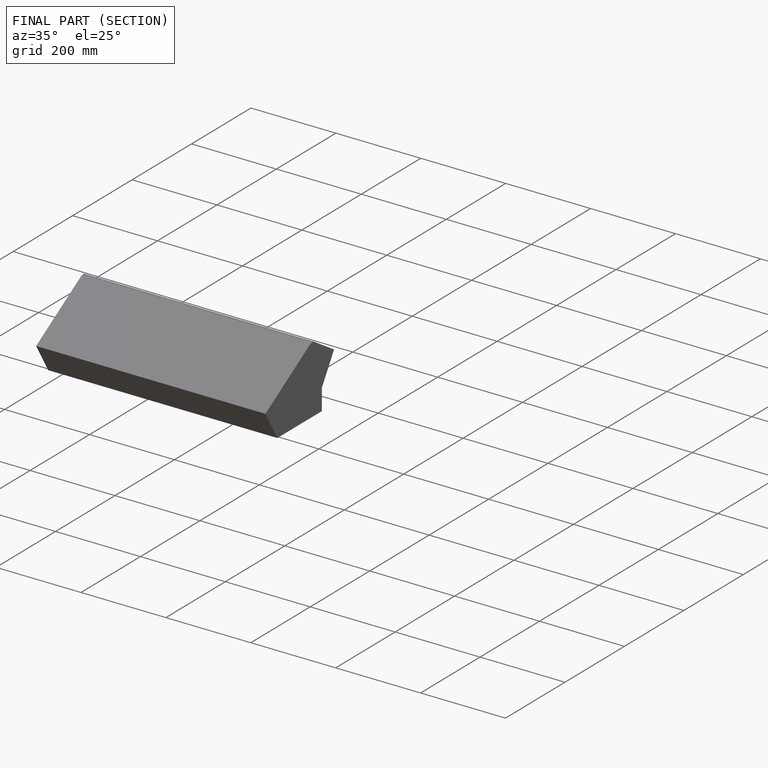
[diagram: finished part — half-section view (interior)]
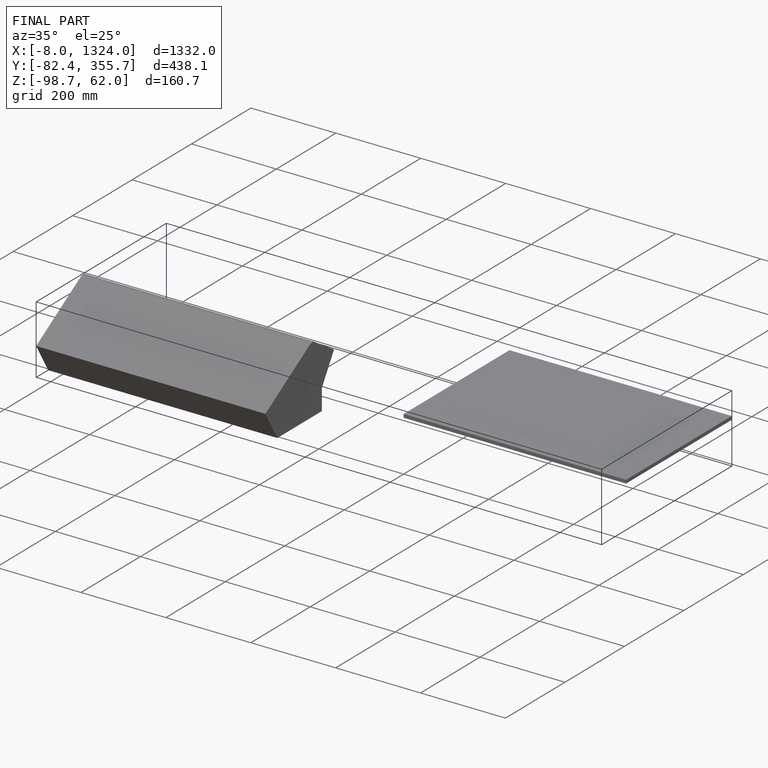
[diagram: finished part — iso view with bounding-box wireframe]
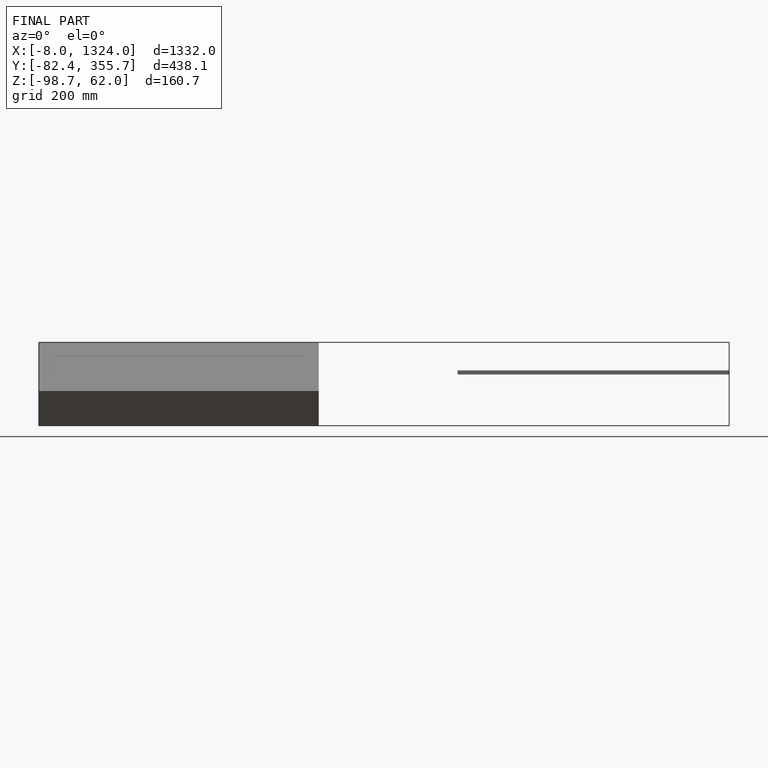
[diagram: finished part — front view with bounding-box wireframe]
